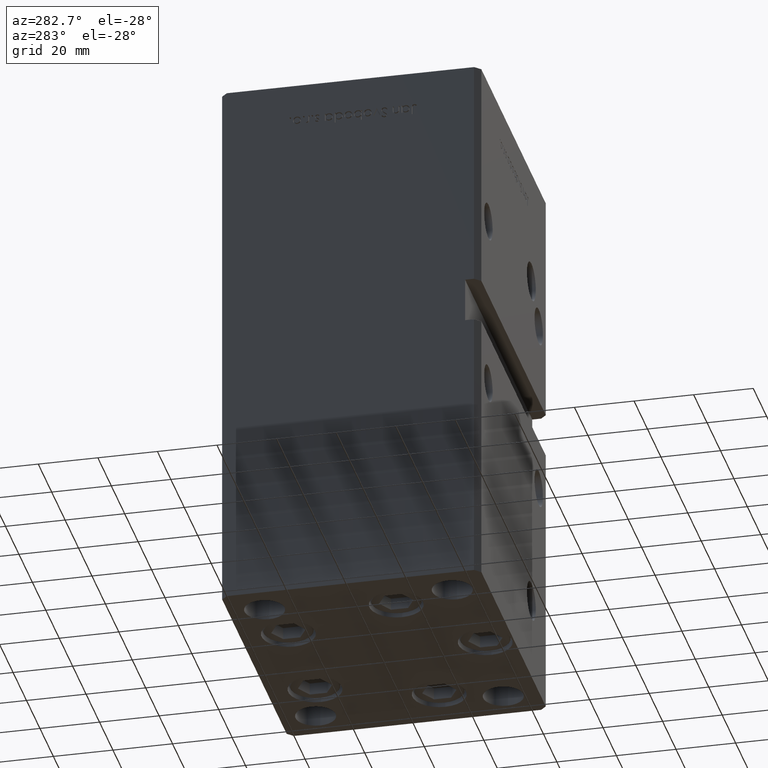
[diagram: clean part render]
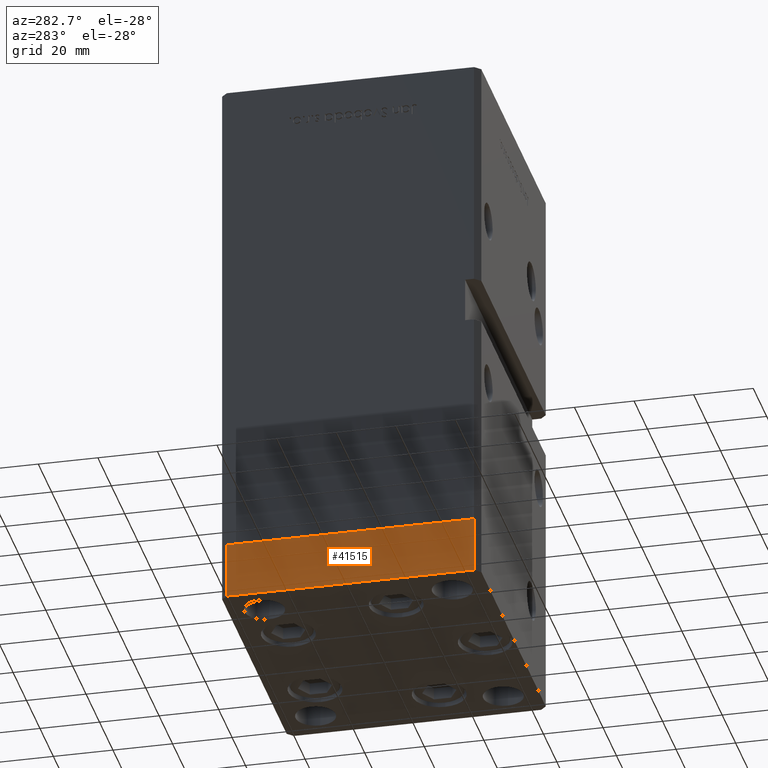
[diagram: same view with one face highlighted and labeled with its STEP entity id]
A machine part, auxiliary view. The second image highlights one B-rep face of the part: STEP entity #41515.
In plain terms, the highlighted planar face has unit normal (-1, -0, 0).
Its self-contained STEP definition (entity closure, byte-faithful):
#977 = ORIENTED_EDGE ( 'NONE', *, *, #47837, .T. ) ;
#4751 = VECTOR ( 'NONE', #8405, 1000.000000000000000 ) ;
#6485 = VERTEX_POINT ( 'NONE', #49778 ) ;
#7388 = LINE ( 'NONE', #32105, #34452 ) ;
#8405 = DIRECTION ( 'NONE',  ( 0.000000000000000000, 0.000000000000000000, 1.000000000000000000 ) ) ;
#8441 = CARTESIAN_POINT ( 'NONE',  ( 50.00000000000000000, -41.49999999999999289, -19.00000000000000000 ) ) ;
#14454 = DIRECTION ( 'NONE',  ( -1.003213576468515193E-15, 1.000000000000000000, 0.000000000000000000 ) ) ;
#14540 = CARTESIAN_POINT ( 'NONE',  ( 50.00000000000000000, -41.49999999999999289, 0.000000000000000000 ) ) ;
#16190 = EDGE_LOOP ( 'NONE', ( #49404, #38168, #977, #42559 ) ) ;
#20508 = CARTESIAN_POINT ( 'NONE',  ( 50.00000000000000000, -41.49999999999999289, -19.00000000000000000 ) ) ;
#23785 = LINE ( 'NONE', #8441, #50810 ) ;
#24983 = EDGE_CURVE ( 'NONE', #48876, #50956, #28828, .T. ) ;
#26018 = PLANE ( 'NONE',  #43747 ) ;
#27500 = CARTESIAN_POINT ( 'NONE',  ( 50.00000000000000000, -41.49999999999999289, -19.00000000000000000 ) ) ;
#27823 = DIRECTION ( 'NONE',  ( -1.003213576468515193E-15, 1.000000000000000000, 0.000000000000000000 ) ) ;
#28828 = LINE ( 'NONE', #20508, #4751 ) ;
#32105 = CARTESIAN_POINT ( 'NONE',  ( 49.99999999999992184, 41.49999999999998579, -19.00000000000000000 ) ) ;
#34452 = VECTOR ( 'NONE', #48519, 1000.000000000000000 ) ;
#38112 = CARTESIAN_POINT ( 'NONE',  ( 50.00000000000000000, -41.49999999999999289, -19.00000000000000000 ) ) ;
#38168 = ORIENTED_EDGE ( 'NONE', *, *, #24983, .F. ) ;
#38656 = FACE_OUTER_BOUND ( 'NONE', #16190, .T. ) ;
#40246 = DIRECTION ( 'NONE',  ( -1.003213576468515193E-15, 1.000000000000000000, 0.000000000000000000 ) ) ;
#41515 = ADVANCED_FACE ( 'NONE', ( #38656 ), #26018, .T. ) ;
#42559 = ORIENTED_EDGE ( 'NONE', *, *, #46462, .T. ) ;
#43747 = AXIS2_PLACEMENT_3D ( 'NONE', #38112, #50495, #14454 ) ;
#46462 = EDGE_CURVE ( 'NONE', #6485, #47863, #7388, .T. ) ;
#47837 = EDGE_CURVE ( 'NONE', #48876, #6485, #23785, .T. ) ;
#47863 = VERTEX_POINT ( 'NONE', #49572 ) ;
#48153 = VECTOR ( 'NONE', #40246, 1000.000000000000000 ) ;
#48322 = LINE ( 'NONE', #48840, #48153 ) ;
#48519 = DIRECTION ( 'NONE',  ( 0.000000000000000000, 0.000000000000000000, 1.000000000000000000 ) ) ;
#48840 = CARTESIAN_POINT ( 'NONE',  ( 50.00000000000000000, -41.49999999999999289, 0.000000000000000000 ) ) ;
#48876 = VERTEX_POINT ( 'NONE', #27500 ) ;
#49385 = EDGE_CURVE ( 'NONE', #50956, #47863, #48322, .T. ) ;
#49404 = ORIENTED_EDGE ( 'NONE', *, *, #49385, .F. ) ;
#49572 = CARTESIAN_POINT ( 'NONE',  ( 49.99999999999992184, 41.49999999999998579, 0.000000000000000000 ) ) ;
#49778 = CARTESIAN_POINT ( 'NONE',  ( 49.99999999999992184, 41.49999999999998579, -19.00000000000000000 ) ) ;
#50495 = DIRECTION ( 'NONE',  ( 1.000000000000000000, 1.003213576468515193E-15, -0.000000000000000000 ) ) ;
#50810 = VECTOR ( 'NONE', #27823, 1000.000000000000000 ) ;
#50956 = VERTEX_POINT ( 'NONE', #14540 ) ;